MODEL slx_04e16ad61147
KIND model
BLOCK [Outport] ActualTargetTrajectory
  BusOutputAsStruct = on
  IconDisplay = Port number
  OutDataTypeStr = Bus: Trajectory
  Port = 4
  PortDimensions = 1
BLOCK [Outport] ActualTrajectoryPoint
  IconDisplay = Port number
  OutDataTypeStr = Bus: TrajectoryPoint
  Port = 3
  PortDimensions = 1
BLOCK [BusAssignment] Bus Assignment
  AssignedSignals = tube_r_m
  Ports = [2, 1]
BLOCK [BusCreator] Bus Creator
  DisplayOption = bar
  InheritFromInputs = on
  Inputs = 4
  OutDataTypeStr = Bus: mvdc_path_matching_debug
  Ports = [4, 1]
BLOCK [BusSelector] Bus Selector1
  OutputAsBus = off
  OutputSignals = tube_r_m
  Ports = [1, 1]
BLOCK [Delay] Delay2
  DelayLength = 1
  InputPortMap = u0
  Ports = [1, 1]
BLOCK [Inport] EnableEmergency
  BusOutputAsStruct = on
  IconDisplay = Port number
  OutDataTypeStr = boolean
  Port = 4
  PortDimensions = 1
BLOCK [Inport] EnablePathMatching
  BusOutputAsStruct = on
  IconDisplay = Port number
  OutDataTypeStr = boolean
  Port = 3
  PortDimensions = 1
BLOCK [Logic] Logical Operator
  AllPortsSameDT = off
  OutDataTypeStr = boolean
  Ports = [2, 1]
BLOCK [Outport] PathPos
  IconDisplay = Port number
  OutDataTypeStr = Bus: PathPos
  Port = 2
  PortDimensions = 1
BLOCK [SignalConversion] Signal Copy
  OverrideOpt = off
BLOCK [SignalConversion] Signal Copy1
  OverrideOpt = off
BLOCK [SignalConversion] Signal Copy2
  OverrideOpt = off
BLOCK [Outport] Status
  IconDisplay = Port number
  OutDataTypeStr = Enum: TUMPathMatchingState
  Port = 5
  PortDimensions = 1
BLOCK [SubSystem] Subsystem
  Ports = [2, 4, 1]
  RequestExecContextInheritance = off
BLOCK [Outport] Subsystem/ActualTrajectoryPoint
  IconDisplay = Port number
  Port = 2
BLOCK [BusSelector] Subsystem/Bus Selector
  OutputAsBus = off
  OutputSignals = d_m,psi_rad
  Ports = [1, 2]
BLOCK [BusSelector] Subsystem/Bus Selector1
  OutputAsBus = off
  OutputSignals = beta_rad,v_mps
  Ports = [1, 2]
BLOCK [EnablePort] Subsystem/Enable
  Ports = []
BLOCK [SubSystem] Subsystem/MATLAB Function
  ErrorFcn = Stateflow.Translate.translate
  PermitHierarchicalResolution = ExplicitOnly
  Ports = [2, 2]
  RequestExecContextInheritance = off
  SFBlockType = MATLAB Function
  TreatAsAtomicUnit = on
BLOCK [Demux] Subsystem/MATLAB Function/ Demux 
  Outputs = 1
  Ports = [1, 1]
BLOCK [S-Function] Subsystem/MATLAB Function/ SFunction 
  EnableBusSupport = on
  FunctionName = sf_sfun
  PortCounts = [2 3]
  Ports = [2, 3]
  SFcnIsStateOwnerBlock = off
  SFunctionDeploymentMode = off
  Tag = Stateflow S-Function mvdc_path_matching 2
BLOCK [Terminator] Subsystem/MATLAB Function/ Terminator 
BLOCK [Outport] Subsystem/MATLAB Function/ActualTrajectoryPoint
  IconDisplay = Port number
  Port = 2
BLOCK [Outport] Subsystem/MATLAB Function/PathPos
  IconDisplay = Port number
BLOCK [Inport] Subsystem/MATLAB Function/TargetTrajectory
  IconDisplay = Port number
  Port = 2
BLOCK [Inport] Subsystem/MATLAB Function/VehicleDynamicState
  IconDisplay = Port number
BLOCK [Product] Subsystem/Multiply
  InputSameDT = off
  OutDataTypeStr = Inherit: Inherit via internal rule
  Ports = [2, 1]
  RndMeth = Floor
  SaturateOnIntegerOverflow = off
BLOCK [Outport] Subsystem/PathPos
  IconDisplay = Port number
BLOCK [Trigonometry] Subsystem/Sin
  Ports = [1, 1]
BLOCK [Sum] Subsystem/Sum
  IconShape = round
  InputSameDT = off
  Inputs = |++
  OutDataTypeStr = Inherit: Inherit via internal rule
  Ports = [2, 1]
  SaturateOnIntegerOverflow = off
BLOCK [Inport] Subsystem/TargetTrajectory
  IconDisplay = Port number
  Port = 2
BLOCK [Inport] Subsystem/VehicleDynamicState
  IconDisplay = Port number
BLOCK [Outport] Subsystem/d_dot_mps
  IconDisplay = Port number
  Port = 4
BLOCK [Outport] Subsystem/d_m
  IconDisplay = Port number
  Port = 3
BLOCK [Switch] Switch3
  Criteria = u2 > Threshold
  InputSameDT = off
  SaturateOnIntegerOverflow = off
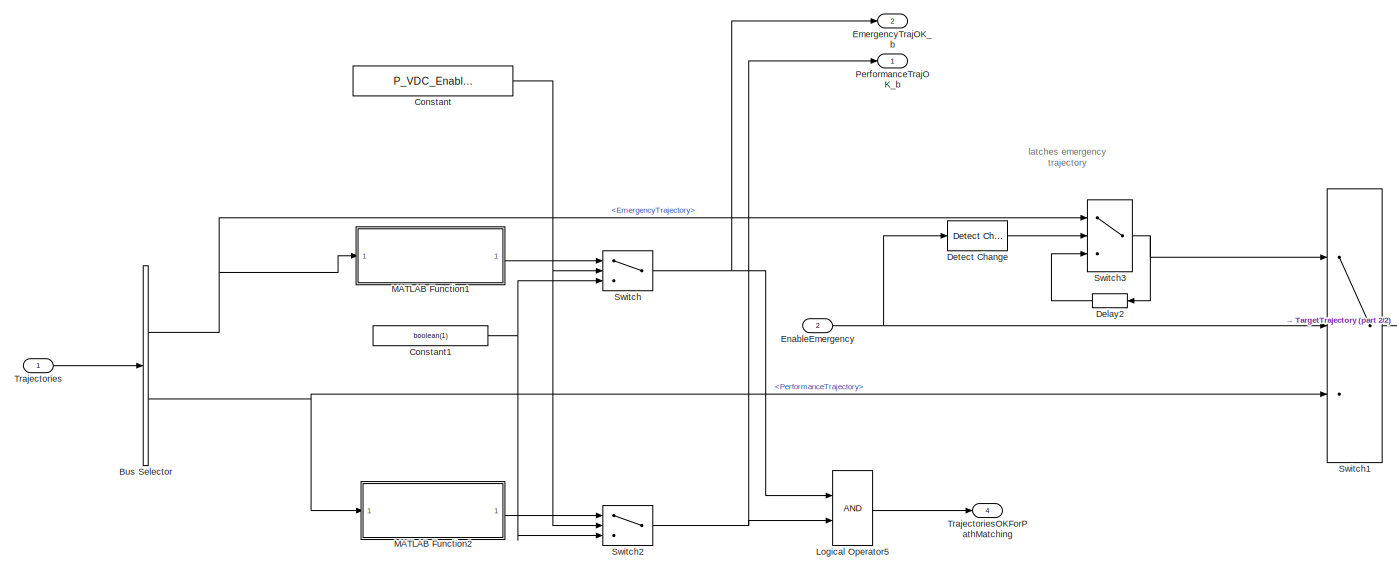
[diagram: TrajectoryHandler - part 1/2, most of the canvas]
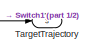
[diagram: TrajectoryHandler - part 2/2, middle right region]
BLOCK [SubSystem] TrajectoryHandler
  Ports = [2, 4]
  RequestExecContextInheritance = off
BLOCK [BusSelector] TrajectoryHandler/Bus Selector
  OutputAsBus = off
  OutputSignals = EmergencyTrajectory,PerformanceTrajectory
  Ports = [1, 2]
BLOCK [Constant] TrajectoryHandler/Constant
  Value = P_VDC_EnableSafetyChecks
BLOCK [Constant] TrajectoryHandler/Constant1
  Value = boolean(1)
BLOCK [Delay] TrajectoryHandler/Delay2
  DelayLength = 1
  InputPortMap = u0
  Ports = [1, 1]
BLOCK [Reference] TrajectoryHandler/Detect Change  REF=simulink/Logic and Bit
Operations/Detect
Change
  Ports = [1, 1]
  SourceBlock = simulink/Logic and Bit\nOperations/Detect\nChange
  SourceProductBaseCode = SL
  SourceProductName = Simulink
  SourceType = Detect Change
BLOCK [Outport] TrajectoryHandler/EmergencyTrajOK_b
  IconDisplay = Port number
  Port = 2
BLOCK [Inport] TrajectoryHandler/EnableEmergency
  IconDisplay = Port number
  Port = 2
BLOCK [Logic] TrajectoryHandler/Logical Operator5
  AllPortsSameDT = off
  OutDataTypeStr = boolean
  Ports = [2, 1]
BLOCK [SubSystem] TrajectoryHandler/MATLAB Function1
  ErrorFcn = Stateflow.Translate.translate
  PermitHierarchicalResolution = ExplicitOnly
  Ports = [1, 1]
  RequestExecContextInheritance = off
  SFBlockType = MATLAB Function
  TreatAsAtomicUnit = on
BLOCK [Demux] TrajectoryHandler/MATLAB Function1/ Demux 
  Outputs = 1
  Ports = [1, 1]
BLOCK [S-Function] TrajectoryHandler/MATLAB Function1/ SFunction 
  EnableBusSupport = on
  FunctionName = sf_sfun
  Parameters = P_VDC_FinalSpeedEmergency_mps,drag_coefficient,roh_air,vehiclemass_kg
  PortCounts = [1 2]
  Ports = [1, 2]
  SFcnIsStateOwnerBlock = off
  SFunctionDeploymentMode = off
  Tag = Stateflow S-Function mvdc_path_matching 3
BLOCK [Terminator] TrajectoryHandler/MATLAB Function1/ Terminator 
BLOCK [Inport] TrajectoryHandler/MATLAB Function1/Trajectory
  IconDisplay = Port number
BLOCK [Outport] TrajectoryHandler/MATLAB Function1/traj_ok
  IconDisplay = Port number
BLOCK [SubSystem] TrajectoryHandler/MATLAB Function2
  ErrorFcn = Stateflow.Translate.translate
  PermitHierarchicalResolution = ExplicitOnly
  Ports = [1, 1]
  RequestExecContextInheritance = off
  SFBlockType = MATLAB Function
  TreatAsAtomicUnit = on
BLOCK [Demux] TrajectoryHandler/MATLAB Function2/ Demux 
  Outputs = 1
  Ports = [1, 1]
BLOCK [S-Function] TrajectoryHandler/MATLAB Function2/ SFunction 
  EnableBusSupport = on
  FunctionName = sf_sfun
  Parameters = P_VDC_FinalSpeedEmergency_mps,drag_coefficient,roh_air,vehiclemass_kg
  PortCounts = [1 2]
  Ports = [1, 2]
  SFcnIsStateOwnerBlock = off
  SFunctionDeploymentMode = off
  Tag = Stateflow S-Function mvdc_path_matching 1
BLOCK [Terminator] TrajectoryHandler/MATLAB Function2/ Terminator 
BLOCK [Inport] TrajectoryHandler/MATLAB Function2/Trajectory
  IconDisplay = Port number
BLOCK [Outport] TrajectoryHandler/MATLAB Function2/traj_ok
  IconDisplay = Port number
BLOCK [Outport] TrajectoryHandler/PerformanceTrajOK_b
  IconDisplay = Port number
BLOCK [Switch] TrajectoryHandler/Switch
  Criteria = u2 > Threshold
  InputSameDT = off
  SaturateOnIntegerOverflow = off
BLOCK [Switch] TrajectoryHandler/Switch1
  Criteria = u2 > Threshold
  InputSameDT = off
  SaturateOnIntegerOverflow = off
BLOCK [Switch] TrajectoryHandler/Switch2
  Criteria = u2 > Threshold
  InputSameDT = off
  SaturateOnIntegerOverflow = off
BLOCK [Switch] TrajectoryHandler/Switch3
  Criteria = u2 > Threshold
  InputSameDT = off
  SaturateOnIntegerOverflow = off
BLOCK [Outport] TrajectoryHandler/TargetTrajectory
  IconDisplay = Port number
  Port = 3
BLOCK [Inport] TrajectoryHandler/Trajectories
  IconDisplay = Port number
BLOCK [Outport] TrajectoryHandler/TrajectoriesOKForPathMatching
  IconDisplay = Port number
  Port = 4
BLOCK [Inport] TrajectoryPlanning
  BusOutputAsStruct = on
  IconDisplay = Port number
  Interpolate = off
  OutDataTypeStr = Bus: TrajectoryPlanning
  Port = 2
  PortDimensions = 1
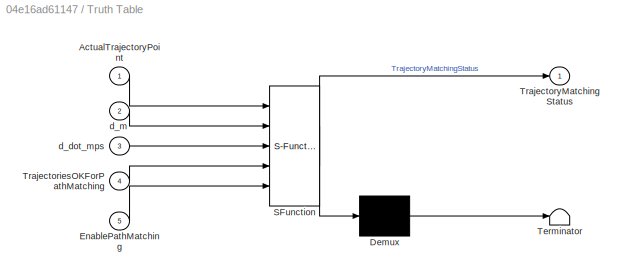
BLOCK [SubSystem] Truth Table
  ErrorFcn = Stateflow.Translate.translate
  PermitHierarchicalResolution = ExplicitOnly
  Ports = [5, 1]
  RequestExecContextInheritance = off
  SFBlockType = Truth Table
  TreatAsAtomicUnit = on
BLOCK [Demux] Truth Table/ Demux 
  Outputs = 1
  Ports = [1, 1]
BLOCK [S-Function] Truth Table/ SFunction 
  EnableBusSupport = on
  FunctionName = sf_sfun
  Parameters = P_VDC_LateralPathDeviationDerMax_mps,P_VDC_LateralPathDeviationMax_m
  PortCounts = [5 2]
  Ports = [5, 2]
  SFcnIsStateOwnerBlock = off
  SFunctionDeploymentMode = off
  Tag = Stateflow S-Function mvdc_path_matching 6
BLOCK [Terminator] Truth Table/ Terminator 
BLOCK [Inport] Truth Table/ActualTrajectoryPoint
  IconDisplay = Port number
BLOCK [Inport] Truth Table/EnablePathMatching
  IconDisplay = Port number
  Port = 5
BLOCK [Inport] Truth Table/TrajectoriesOKForPathMatching
  IconDisplay = Port number
  Port = 4
BLOCK [Outport] Truth Table/TrajectoryMatchingStatus
  IconDisplay = Port number
BLOCK [Inport] Truth Table/d_dot_mps
  IconDisplay = Port number
  Port = 3
BLOCK [Inport] Truth Table/d_m
  IconDisplay = Port number
  Port = 2
BLOCK [UnaryMinus] Unary Minus
BLOCK [Inport] VehicleDynamicState
  BusOutputAsStruct = on
  IconDisplay = Port number
  OutDataTypeStr = Bus: VehicleDynamicState
  PortDimensions = 1
BLOCK [Outport] debug
  BusOutputAsStruct = on
  IconDisplay = Port number
  OutDataTypeStr = Bus: mvdc_path_matching_debug
  PortDimensions = 1
ANNOTATION (root): Author: Alexander Wischnewski (<email>) Chair of Automatic Control at TU Munich Description: Implements the 'path matching' functionality. This means that it takes the current vehicle position, searches for the nearest point on the target trajectory and calculates the resulting coordinates in the trajectory curvilinear coordinate system. Furthermore, trajectory checks are applied and emergency tra...<+814ch>
ANNOTATION (root): latch after matching started to ensure its still matched on the emergency line
ANNOTATION TrajectoryHandler: latches emergency trajectory
LINE Bus Assignment:1 -> Bus Creator:4
LINE Bus Creator:1 -> debug:1
LINE Bus Selector1:1 -> Unary Minus:1
LINE Delay2:1 -> Switch3:3
LINE EnableEmergency:1 -> TrajectoryHandler:2
NET EnablePathMatching:1 -> Logical Operator:2, Truth Table:5
NET Logical Operator:1 -> Switch3:1, Switch3:2
LINE Signal Copy1:1 -> Bus Creator:1
NET Signal Copy2:1 -> Bus Assignment:1, Bus Selector1:1
LINE Signal Copy:1 -> Bus Creator:2
LINE Subsystem/Bus Selector1:1 -> Subsystem/Sum:2
LINE Subsystem/Bus Selector1:2 -> Subsystem/Multiply:2
LINE Subsystem/Bus Selector:1 -> Subsystem/d_m:1
LINE Subsystem/Bus Selector:2 -> Subsystem/Sum:1
NET Subsystem/MATLAB Function:1 -> Subsystem/Bus Selector:1, Subsystem/PathPos:1
LINE Subsystem/MATLAB Function:2 -> Subsystem/ActualTrajectoryPoint:1
LINE Subsystem/Multiply:1 -> Subsystem/d_dot_mps:1
LINE Subsystem/Sin:1 -> Subsystem/Multiply:1
LINE Subsystem/Sum:1 -> Subsystem/Sin:1
LINE Subsystem/TargetTrajectory:1 -> Subsystem/MATLAB Function:2
NET Subsystem/VehicleDynamicState:1 -> Subsystem/Bus Selector1:1, Subsystem/MATLAB Function:1
NET Subsystem:1 -> Bus Creator:3, PathPos:1
NET Subsystem:2 -> ActualTrajectoryPoint:1, Signal Copy2:1, Truth Table:1
LINE Subsystem:3 -> Truth Table:2
LINE Subsystem:4 -> Truth Table:3
NET Switch3:1 -> Delay2:1, Subsystem:enable
NET TrajectoryHandler/Bus Selector:1 -> TrajectoryHandler/MATLAB Function1:1, TrajectoryHandler/Switch3:1
NET TrajectoryHandler/Bus Selector:2 -> TrajectoryHandler/MATLAB Function2:1, TrajectoryHandler/Switch1:3
NET TrajectoryHandler/Constant1:1 -> TrajectoryHandler/Switch2:3, TrajectoryHandler/Switch:3
NET TrajectoryHandler/Constant:1 -> TrajectoryHandler/Switch2:2, TrajectoryHandler/Switch:2
LINE TrajectoryHandler/Delay2:1 -> TrajectoryHandler/Switch3:3
LINE TrajectoryHandler/Detect Change:1 -> TrajectoryHandler/Switch3:2
NET TrajectoryHandler/EnableEmergency:1 -> TrajectoryHandler/Detect Change:1, TrajectoryHandler/Switch1:2
LINE TrajectoryHandler/Logical Operator5:1 -> TrajectoryHandler/TrajectoriesOKForPathMatching:1
LINE TrajectoryHandler/MATLAB Function1:1 -> TrajectoryHandler/Switch:1
LINE TrajectoryHandler/MATLAB Function2:1 -> TrajectoryHandler/Switch2:1
LINE TrajectoryHandler/Switch1:1 -> TrajectoryHandler/TargetTrajectory:1
NET TrajectoryHandler/Switch2:1 -> TrajectoryHandler/Logical Operator5:2, TrajectoryHandler/PerformanceTrajOK_b:1
NET TrajectoryHandler/Switch3:1 -> TrajectoryHandler/Delay2:1, TrajectoryHandler/Switch1:1
NET TrajectoryHandler/Switch:1 -> TrajectoryHandler/EmergencyTrajOK_b:1, TrajectoryHandler/Logical Operator5:1
LINE TrajectoryHandler/Trajectories:1 -> TrajectoryHandler/Bus Selector:1
LINE TrajectoryHandler:1 -> Signal Copy1:1
LINE TrajectoryHandler:2 -> Signal Copy:1
NET TrajectoryHandler:3 -> ActualTargetTrajectory:1, Subsystem:2
NET TrajectoryHandler:4 -> Logical Operator:1, Truth Table:4
LINE TrajectoryPlanning:1 -> TrajectoryHandler:1
LINE Truth Table:1 -> Status:1
LINE Unary Minus:1 -> Bus Assignment:2
LINE VehicleDynamicState:1 -> Subsystem:1
note: NET lines group one-source signal fan-out (src -> all destinations, sorted); 1:1 wires keep LINE
CHART TrajectoryHandler/MATLAB Function2 states=1 transitions=1
  STATE_LABEL 'eML_blk_kernel()'
  STATE_LABEL 'SCRIPT:\nfunction traj_ok = checkPerfomanceTrajectory(Trajectory, drag_coefficient, roh_air, vehiclemass_kg, P_VDC_FinalSpeedEmergency_mps)\n\ntraj_ok = checkTrajectory(Trajectory, drag_coefficient, roh_air, vehiclemass_kg, false, P_VDC_FinalSpeedEmergency_mps); '
CHART Subsystem/MATLAB Function states=1 transitions=1
  STATE_LABEL 'eML_blk_kernel()'
  STATE_LABEL 'SCRIPT:\nfunction [PathPos, ActualTrajectoryPoint]  = localTrajectoryMatching(VehicleDynamicState, TargetTrajectory)\n    % find current trajectory point\n    [PathPos, MatchIdx] = localTrajectoryMatching(VehicleDynamicState, TargetTrajectory);\n    % read out trajectory point\n    [ActualTrajectoryPoint] = trajectoryInterpolation(TargetTrajectory, PathPos.s_m); \n    % store match index for further dia...<+68ch>'
CHART TrajectoryHandler/MATLAB Function1 states=1 transitions=1
  STATE_LABEL 'eML_blk_kernel()'
  STATE_LABEL 'SCRIPT:\nfunction traj_ok = checkEmergencyTrajectory(Trajectory, drag_coefficient, roh_air, vehiclemass_kg, P_VDC_FinalSpeedEmergency_mps)\n\ntraj_ok = checkTrajectory(Trajectory, drag_coefficient, roh_air, vehiclemass_kg, true, P_VDC_FinalSpeedEmergency_mps); '
CHART Truth Table states=1 transitions=1
  STATE_LABEL 'tt_blk_kernel'
  STATE_LABEL 'SCRIPT:\nfunction TrajectoryMatchingStatus = fcn(ActualTrajectoryPoint, d_m, d_dot_mps, TrajectoriesOKForPathMatching, EnablePathMatching, P_VDC_LateralPathDeviationMax_m, P_VDC_LateralPathDeviationDerMax_mps)\n\naVarTruthTableCondition_1 = false;\naVarTruthTableCondition_2 = false;\naVarTruthTableCondition_3 = false;\naVarTruthTableCondition_4 = false;\naVarTruthTableCondition_5 = false;\n\n\n% Matching ac...<+2237ch>'
